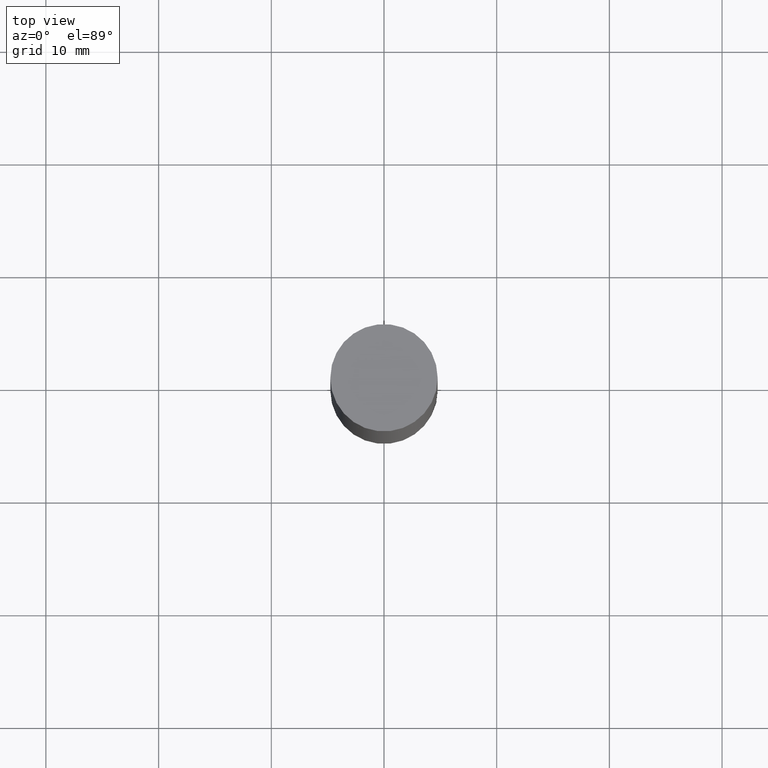
[diagram: clean part render]
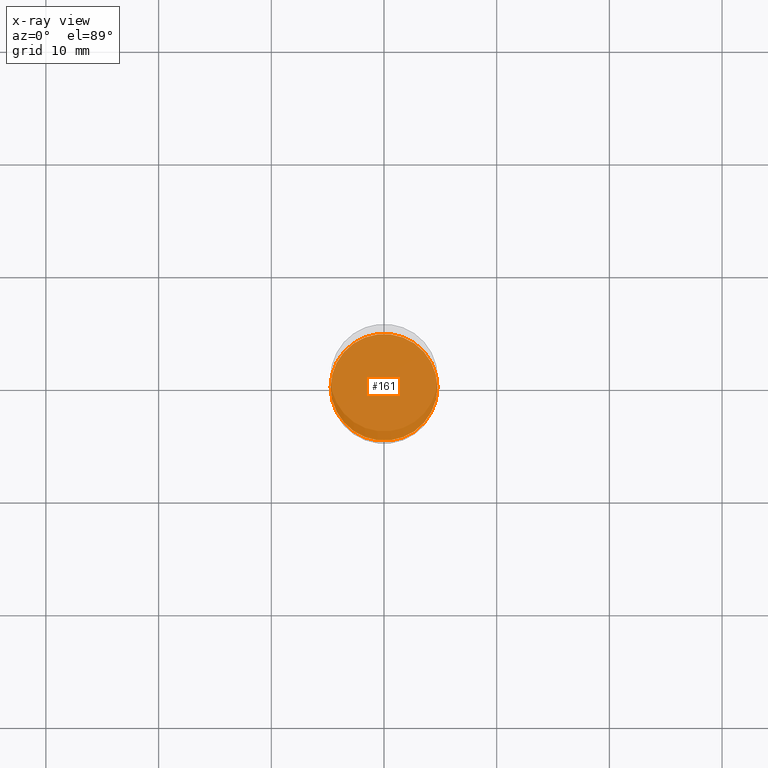
[diagram: x-ray — body ghosted, one internal face saturated and labeled with its STEP entity id]
A machine part, top view, then the same camera in x-ray: the body is ghosted and one INTERNAL B-rep face — a face not visible from any outside direction — is saturated and labeled: STEP entity #161.
In plain terms, the highlighted planar face has unit normal (-0, 0, 1).
Its self-contained STEP definition (entity closure, byte-faithful):
#39 = EDGE_CURVE ( 'NONE', #613, #195, #67, .T. ) ;
#53 = AXIS2_PLACEMENT_3D ( 'NONE', #622, #559, #88 ) ;
#67 = CIRCLE ( 'NONE', #53, 0.1864999999999999714 ) ;
#88 = DIRECTION ( 'NONE',  ( 1.000000000000000000, -6.982962677686269077E-15, 0.000000000000000000 ) ) ;
#96 = ORIENTED_EDGE ( 'NONE', *, *, #650, .F. ) ;
#161 = ADVANCED_FACE ( 'NONE', ( #231 ), #335, .F. ) ;
#195 = VERTEX_POINT ( 'NONE', #236 ) ;
#197 = AXIS2_PLACEMENT_3D ( 'NONE', #319, #284, #531 ) ;
#222 = EDGE_LOOP ( 'NONE', ( #96, #640 ) ) ;
#231 = FACE_OUTER_BOUND ( 'NONE', #222, .T. ) ;
#236 = CARTESIAN_POINT ( 'NONE',  ( 0.1864999999999999714, -8.068813374066505039E-15, -1.937999999999999945 ) ) ;
#251 = AXIS2_PLACEMENT_3D ( 'NONE', #676, #406, #313 ) ;
#284 = DIRECTION ( 'NONE',  ( -2.438088387897960049E-29, 3.491481338843145188E-15, 1.000000000000000000 ) ) ;
#313 = DIRECTION ( 'NONE',  ( 1.000000000000000000, -6.982962677686269077E-15, 0.000000000000000000 ) ) ;
#319 = CARTESIAN_POINT ( 'NONE',  ( 4.739318546386794397E-29, -6.766490834678016045E-15, -1.937999999999999945 ) ) ;
#335 = PLANE ( 'NONE',  #197 ) ;
#406 = DIRECTION ( 'NONE',  ( -2.445468806185136597E-29, 3.491481338843145583E-15, 1.000000000000000000 ) ) ;
#408 = CARTESIAN_POINT ( 'NONE',  ( -0.1864999999999999714, -5.436030178137207592E-15, -1.937999999999999945 ) ) ;
#531 = DIRECTION ( 'NONE',  ( 1.000000000000000000, -6.982962677686265922E-15, 4.876176775795935793E-29 ) ) ;
#559 = DIRECTION ( 'NONE',  ( -2.445468806185136597E-29, 3.491481338843145583E-15, 1.000000000000000000 ) ) ;
#613 = VERTEX_POINT ( 'NONE', #408 ) ;
#622 = CARTESIAN_POINT ( 'NONE',  ( 4.739318546386794397E-29, -6.766490834678016045E-15, -1.937999999999999945 ) ) ;
#640 = ORIENTED_EDGE ( 'NONE', *, *, #39, .F. ) ;
#649 = CIRCLE ( 'NONE', #251, 0.1864999999999999714 ) ;
#650 = EDGE_CURVE ( 'NONE', #195, #613, #649, .T. ) ;
#676 = CARTESIAN_POINT ( 'NONE',  ( 4.739318546386794397E-29, -6.766490834678016045E-15, -1.937999999999999945 ) ) ;